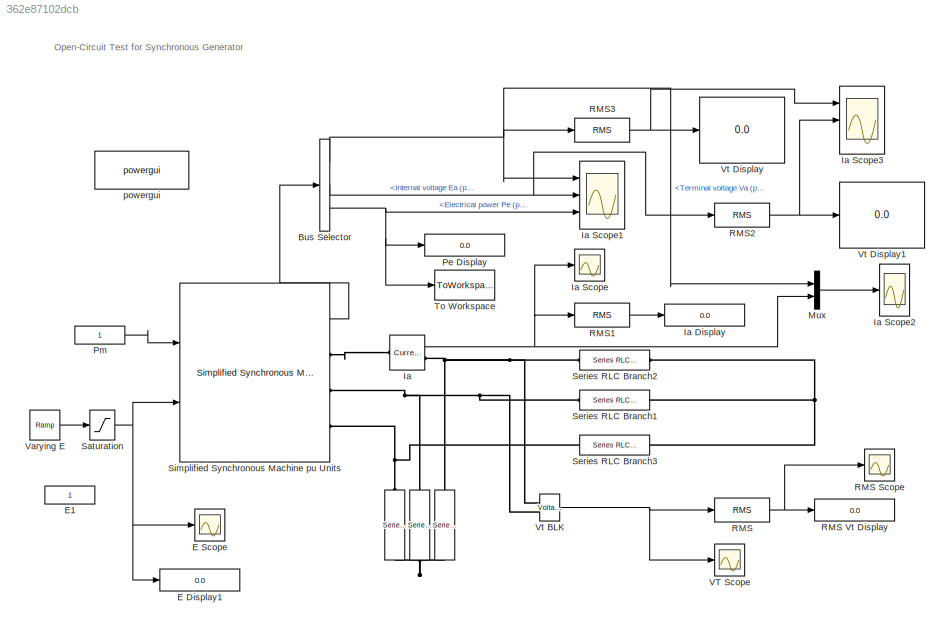
MODEL slx_362e87102dcb
KIND model
CONFIG AbsTol = auto
CONFIG EnableMultiTasking = off
CONFIG FixedStep = 1e-3
CONFIG MaxStep = auto
CONFIG MinStep = auto
CONFIG RelTol = 1e-4
CONFIG SampleTimeConstraint = Unconstrained
CONFIG SolverName = ode23tb
CONFIG StartTime = 0.0
CONFIG StopTime = 2
BLOCK [Reference]    REF=powerlib/Elements/Series RLC Branch
  NameLocation = left
  Ports = [0, 0, 0, 0, 0, 1, 1]
  SourceBlock = powerlib/Elements/Series RLC Branch
  SourceProductBaseCode = PS
  SourceType = Series RLC Branch
BLOCK [BusSelector] Bus Selector
  OutputSignals = Terminal voltage Va (pu),Internal voltage Ea (pu),Electrical power Pe (pu)
  Ports = [1, 3]
BLOCK [Display] E Display1
  Decimation = 1
  Ports = [1]
BLOCK [Scope] E Scope
  Floating = off
  NumInputPorts = 1
  Ports = [1]
  ScopeSpecificationString = Simulink.scopes.TimeScopeBlockCfg('CurrentConfiguration', extmgr.ConfigurationSet(extmgr.Configuration('Core','General UI',true),extmgr.Configuration('Core','Source UI',true),extmgr.Configuration('Sources','WiredSimulink',true,'DataLogging',true,'DataLoggingVariableName','Ef','DataLoggingSaveFormat','Array','DataLoggingDecimation','1','DataLoggingDecimateData',true),extmgr.Configuration('Visuals',...<+1679ch>
BLOCK [Constant] E1
BLOCK [Reference] Ia  REF=powerlib/Measurements/Current Measurement
  AttributesFormatString = \n
  Ports = [0, 1, 0, 0, 0, 1, 1]
  SourceBlock = powerlib/Measurements/Current Measurement
  SourceProductBaseCode = PS
  SourceType = Current Measurement
  Tag = PoWeRsYsTeMmEaSuReMeNt
BLOCK [Display] Ia Display
  Decimation = 1
  Ports = [1]
BLOCK [Scope] Ia Scope
  Floating = off
  NumInputPorts = 1
  Ports = [1]
  ScopeSpecificationString = Simulink.scopes.TimeScopeBlockCfg('CurrentConfiguration', extmgr.ConfigurationSet(extmgr.Configuration('Core','General UI',true),extmgr.Configuration('Core','Source UI',true),extmgr.Configuration('Sources','WiredSimulink',true,'DataLoggingSaveFormat','StructureWithTime','DataLoggingDecimation','1','DataLoggingDecimateData',true),extmgr.Configuration('Visuals','Time Domain',true,'SerializedDisplays...<+1624ch>
BLOCK [Scope] Ia Scope1
  Floating = off
  NumInputPorts = 3
  Ports = [3]
  ScopeSpecificationString = Simulink.scopes.TimeScopeBlockCfg('CurrentConfiguration', extmgr.ConfigurationSet(extmgr.Configuration('Core','General UI',true),extmgr.Configuration('Core','Source UI',true),extmgr.Configuration('Sources','WiredSimulink',true,'DataLoggingSaveFormat','StructureWithTime','DataLoggingDecimation','1','DataLoggingDecimateData',true,'DataLoggingVariableName','ScopeData2'),extmgr.Configuration('Visuals'...<+3007ch>
BLOCK [Scope] Ia Scope2
  Floating = off
  NumInputPorts = 1
  Ports = [1]
  ScopeSpecificationString = Simulink.scopes.TimeScopeBlockCfg('CurrentConfiguration', extmgr.ConfigurationSet(extmgr.Configuration('Core','General UI',true),extmgr.Configuration('Core','Source UI',true),extmgr.Configuration('Sources','WiredSimulink',true,'DataLoggingSaveFormat','StructureWithTime','DataLoggingDecimation','1','DataLoggingDecimateData',true,'DataLoggingVariableName','ScopeData1'),extmgr.Configuration('Visuals'...<+3031ch>
BLOCK [Scope] Ia Scope3
  Floating = off
  NumInputPorts = 3
  Ports = [3]
  ScopeSpecificationString = Simulink.scopes.TimeScopeBlockCfg('CurrentConfiguration', extmgr.ConfigurationSet(extmgr.Configuration('Core','General UI',true),extmgr.Configuration('Core','Source UI',true),extmgr.Configuration('Sources','WiredSimulink',true,'DataLoggingSaveFormat','StructureWithTime','DataLoggingDecimation','1','DataLoggingDecimateData',true,'DataLoggingVariableName','ScopeData1'),extmgr.Configuration('Visuals'...<+2949ch>
BLOCK [Mux] Mux
  DisplayOption = bar
  Inputs = 2
  Ports = [2, 1]
BLOCK [Display] Pe Display
  Decimation = 1
  NameLocation = top
  Ports = [1]
BLOCK [Constant] Pm
BLOCK [Reference] RMS  REF=powerlib_extras/Measurements/RMS
  Ports = [1, 1]
  SourceBlock = powerlib_extras/Measurements/RMS
  SourceProductBaseCode = PS
  SourceType = RMS
BLOCK [Scope] RMS Scope
  Floating = off
  NumInputPorts = 1
  Ports = [1]
  ScopeSpecificationString = Simulink.scopes.TimeScopeBlockCfg('CurrentConfiguration', extmgr.ConfigurationSet(extmgr.Configuration('Core','General UI',true),extmgr.Configuration('Core','Source UI',true),extmgr.Configuration('Sources','WiredSimulink',true,'DataLogging',true,'DataLoggingVariableName','Vt1','DataLoggingSaveFormat','Array','DataLoggingDecimation','1','DataLoggingDecimateData',true),extmgr.Configuration('Visuals'...<+1718ch>
BLOCK [Display] RMS Vt Display
  Decimation = 1
  Ports = [1]
BLOCK [Reference] RMS1  REF=powerlib_extras/Measurements/RMS
  Ports = [1, 1]
  SourceBlock = powerlib_extras/Measurements/RMS
  SourceProductBaseCode = PS
  SourceType = RMS
BLOCK [Reference] RMS2  REF=powerlib_extras/Measurements/RMS
  Ports = [1, 1]
  SourceBlock = powerlib_extras/Measurements/RMS
  SourceProductBaseCode = PS
  SourceType = RMS
BLOCK [Reference] RMS3  REF=powerlib_extras/Measurements/RMS
  Ports = [1, 1]
  SourceBlock = powerlib_extras/Measurements/RMS
  SourceProductBaseCode = PS
  SourceType = RMS
BLOCK [Saturate] Saturation
  LowerLimit = 0
  UpperLimit = 1.7
BLOCK [Reference] Series RLC Branch1  REF=powerlib/Elements/Series RLC Branch
  Ports = [0, 0, 0, 0, 0, 1, 1]
  SourceBlock = powerlib/Elements/Series RLC Branch
  SourceProductBaseCode = PS
  SourceType = Series RLC Branch
BLOCK [Reference] Series RLC Branch2  REF=powerlib/Elements/Series RLC Branch
  Ports = [0, 0, 0, 0, 0, 1, 1]
  SourceBlock = powerlib/Elements/Series RLC Branch
  SourceProductBaseCode = PS
  SourceType = Series RLC Branch
BLOCK [Reference] Series RLC Branch3  REF=powerlib/Elements/Series RLC Branch
  Ports = [0, 0, 0, 0, 0, 1, 1]
  SourceBlock = powerlib/Elements/Series RLC Branch
  SourceProductBaseCode = PS
  SourceType = Series RLC Branch
BLOCK [Reference] Simplified Synchronous Machine pu Units  REF=powerlib/Machines/Simplified Synchronous
Machine pu Units
  Ports = [2, 1, 0, 0, 0, 0, 3]
  SourceBlock = powerlib/Machines/Simplified Synchronous\nMachine pu Units
  SourceProductBaseCode = PS
  SourceType = Simplified Synchronous Machine
BLOCK [ToWorkspace] To Workspace
  Decimation = 20
  MaxDataPoints = inf
  Ports = [1]
  SampleTime = -1
  SaveFormat = Timeseries
  VariableName = Pe_display
BLOCK [Scope] VT Scope
  Floating = off
  NumInputPorts = 1
  Ports = [1]
  ScopeSpecificationString = Simulink.scopes.TimeScopeBlockCfg('CurrentConfiguration', extmgr.ConfigurationSet(extmgr.Configuration('Core','General UI',true),extmgr.Configuration('Core','Source UI',true),extmgr.Configuration('Sources','WiredSimulink',true,'DataLogging',true,'DataLoggingVariableName','Vt','DataLoggingSaveFormat','Array','DataLoggingDecimation','1','DataLoggingDecimateData',true),extmgr.Configuration('Visuals',...<+1660ch>
BLOCK [Reference] Varying E  REF=simulink/Sources/Ramp
  Ports = [0, 1]
  SourceBlock = simulink/Sources/Ramp
  SourceProductBaseCode = SL
  SourceType = Ramp
BLOCK [Reference] Vt BLK  REF=powerlib/Measurements/Voltage Measurement
  NameLocation = top
  Ports = [0, 1, 0, 0, 0, 2]
  SourceBlock = powerlib/Measurements/Voltage Measurement
  SourceProductBaseCode = PS
  SourceType = Voltage Measurement
BLOCK [Display] Vt Display
  Decimation = 1
  Ports = [1]
BLOCK [Display] Vt Display1
  Decimation = 1
  Ports = [1]
BLOCK [Reference] powergui  REF=powerlib/powergui
  Ports = []
  Priority = 2
  SourceBlock = powerlib/powergui
  SourceProductBaseCode = PS
  SourceType = PSB option menu block
ANNOTATION (root): Open-Circuit Test for Synchronous Generator
NET Bus Selector:1 -> Ia Scope1:1, Mux:1, RMS3:1
NET Bus Selector:2 -> Ia Scope1:2, RMS2:1
NET Bus Selector:3 -> Ia Scope1:3, Pe Display:1, To Workspace:1
NET Ia:1 -> Ia Scope:1, Mux:2, RMS1:1
LINE Mux:1 -> Ia Scope2:1
LINE Pm:1 -> Simplified Synchronous Machine pu Units:1
LINE RMS1:1 -> Ia Display:1
NET RMS2:1 -> Ia Scope3:2, Vt Display1:1
NET RMS3:1 -> Ia Scope3:1, Vt Display:1
NET RMS:1 -> RMS Scope:1, RMS Vt Display:1
NET Saturation:1 -> E Display1:1, E Scope:1, Simplified Synchronous Machine pu Units:2
LINE Simplified Synchronous Machine pu Units:1 -> Bus Selector:1
LINE Varying E:1 -> Saturation:1
NET Vt BLK:1 -> RMS:1, VT Scope:1
PNET net1:  :LConn1 -- Ia:RConn1 -- Series RLC Branch1:LConn1 -- Series RLC Branch2:LConn1 -- Series RLC Branch3:LConn1 -- Simplified Synchronous Machine pu Units:RConn2 -- Simplified Synchronous Machine pu Units:RConn3 -- Vt BLK:LConn1 -- Vt BLK:LConn2
PNET net2:  :RConn1
PLINE Ia:LConn1 -- Simplified Synchronous Machine pu Units:RConn1
PNET net3: Series RLC Branch1:RConn1 -- Series RLC Branch2:RConn1 -- Series RLC Branch3:RConn1
note: NET lines group one-source signal fan-out (src -> all destinations, sorted); 1:1 wires keep LINE; PNET lines group multi-terminal physical nets as a canonical sorted terminal list (undirected conserving connections); 2-terminal nets keep the pairwise PLINE form
